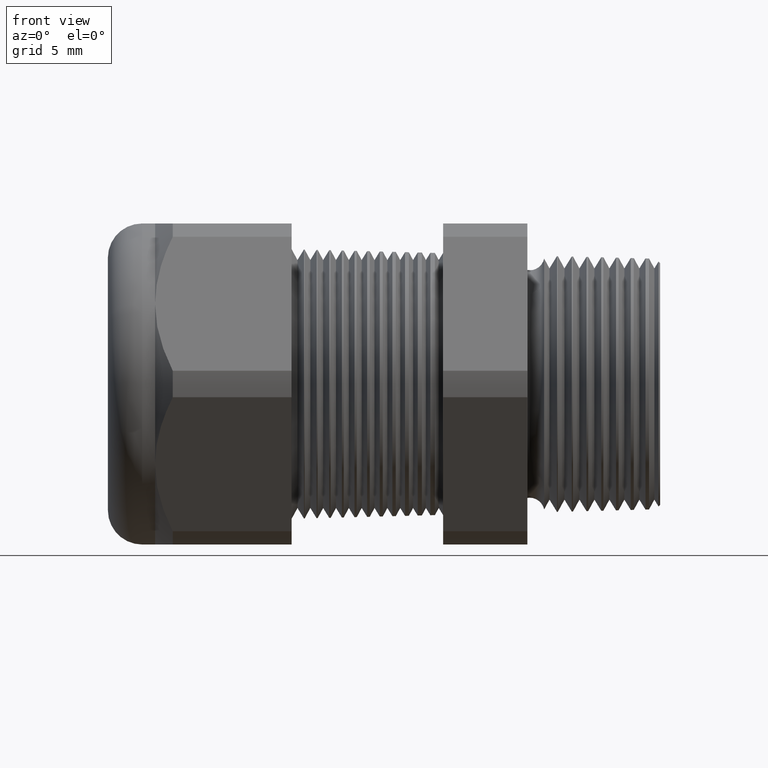
[diagram: clean part render]
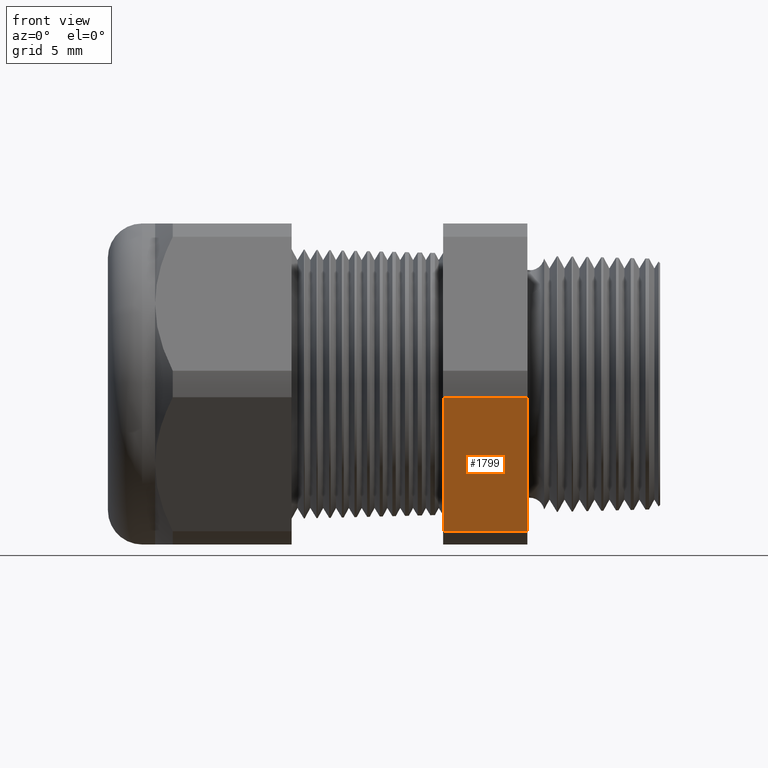
[diagram: same view with one face highlighted and labeled with its STEP entity id]
A machine part, front view. The second image highlights one B-rep face of the part: STEP entity #1799.
In plain terms, the highlighted planar face has unit normal (0, -0.866, -0.5).
Its self-contained STEP definition (entity closure, byte-faithful):
#1722 = VERTEX_POINT ( 'NONE', #4026 ) ;
#1724 = EDGE_CURVE ( 'NONE', #1722, #1725, #4025, .T. ) ;
#1725 = VERTEX_POINT ( 'NONE', #4020 ) ;
#1777 = ORIENTED_EDGE ( 'NONE', *, *, #1778, .T. ) ;
#1778 = EDGE_CURVE ( 'NONE', #1722, #1779, #4128, .T. ) ;
#1779 = VERTEX_POINT ( 'NONE', #4124 ) ;
#1780 = ORIENTED_EDGE ( 'NONE', *, *, #1781, .F. ) ;
#1781 = EDGE_CURVE ( 'NONE', #1796, #1779, #4123, .T. ) ;
#1795 = EDGE_CURVE ( 'NONE', #1725, #1796, #4166, .T. ) ;
#1796 = VERTEX_POINT ( 'NONE', #4159 ) ;
#1799 = ADVANCED_FACE ( 'NONE', ( #4152 ), #4151, .T. ) ;
#1800 = EDGE_LOOP ( 'NONE', ( #1801, #1802, #1777, #1780 ) ) ;
#1801 = ORIENTED_EDGE ( 'NONE', *, *, #1795, .F. ) ;
#1802 = ORIENTED_EDGE ( 'NONE', *, *, #1724, .F. ) ;
#4020 = CARTESIAN_POINT ( 'NONE',  ( -0.3100000000000000000, -0.2344281053908202100, -0.3439586107409880500 ) ) ;
#4021 = DIRECTION ( 'NONE',  ( 0.0000000000000000000, 0.5000000000000002200, -0.8660254037844384900 ) ) ;
#4022 = VECTOR ( 'NONE', #4021, 39.37007874015748900 ) ;
#4024 = CARTESIAN_POINT ( 'NONE',  ( -0.3100000000000000000, -0.1372595264191642800, -0.5122595264191648300 ) ) ;
#4025 = LINE ( 'NONE', #4024, #4022 ) ;
#4026 = CARTESIAN_POINT ( 'NONE',  ( -0.3100000000000000000, -0.4150909474475088000, -0.03104138925901237000 ) ) ;
#4120 = DIRECTION ( 'NONE',  ( 0.0000000000000000000, -0.5000000000000002200, 0.8660254037844384900 ) ) ;
#4121 = VECTOR ( 'NONE', #4120, 39.37007874015748900 ) ;
#4122 = CARTESIAN_POINT ( 'NONE',  ( -0.5068503937007874400, -0.1372595264191642800, -0.5122595264191648300 ) ) ;
#4123 = LINE ( 'NONE', #4122, #4121 ) ;
#4124 = CARTESIAN_POINT ( 'NONE',  ( -0.5068503937007874400, -0.4150909474475088000, -0.03104138925901237000 ) ) ;
#4125 = DIRECTION ( 'NONE',  ( -1.000000000000000000, 0.0000000000000000000, 0.0000000000000000000 ) ) ;
#4126 = VECTOR ( 'NONE', #4125, 39.37007874015748100 ) ;
#4127 = CARTESIAN_POINT ( 'NONE',  ( 0.0000000000000000000, -0.4150909474475088000, -0.03104138925901237000 ) ) ;
#4128 = LINE ( 'NONE', #4127, #4126 ) ;
#4147 = DIRECTION ( 'NONE',  ( 0.0000000000000000000, 0.5000000000000002200, -0.8660254037844384900 ) ) ;
#4148 = DIRECTION ( 'NONE',  ( 0.0000000000000000000, -0.8660254037844386000, -0.5000000000000003300 ) ) ;
#4149 = CARTESIAN_POINT ( 'NONE',  ( 0.0000000000000000000, -0.2344281053908202900, -0.3439586107409879900 ) ) ;
#4150 = AXIS2_PLACEMENT_3D ( 'NONE', #4149, #4148, #4147 ) ;
#4151 = PLANE ( 'NONE',  #4150 ) ;
#4152 = FACE_OUTER_BOUND ( 'NONE', #1800, .T. ) ;
#4159 = CARTESIAN_POINT ( 'NONE',  ( -0.5068503937007874400, -0.2344281053908202100, -0.3439586107409880500 ) ) ;
#4160 = DIRECTION ( 'NONE',  ( -1.000000000000000000, 0.0000000000000000000, 0.0000000000000000000 ) ) ;
#4161 = VECTOR ( 'NONE', #4160, 39.37007874015748100 ) ;
#4162 = CARTESIAN_POINT ( 'NONE',  ( 0.0000000000000000000, -0.2344281053908202100, -0.3439586107409880500 ) ) ;
#4166 = LINE ( 'NONE', #4162, #4161 ) ;